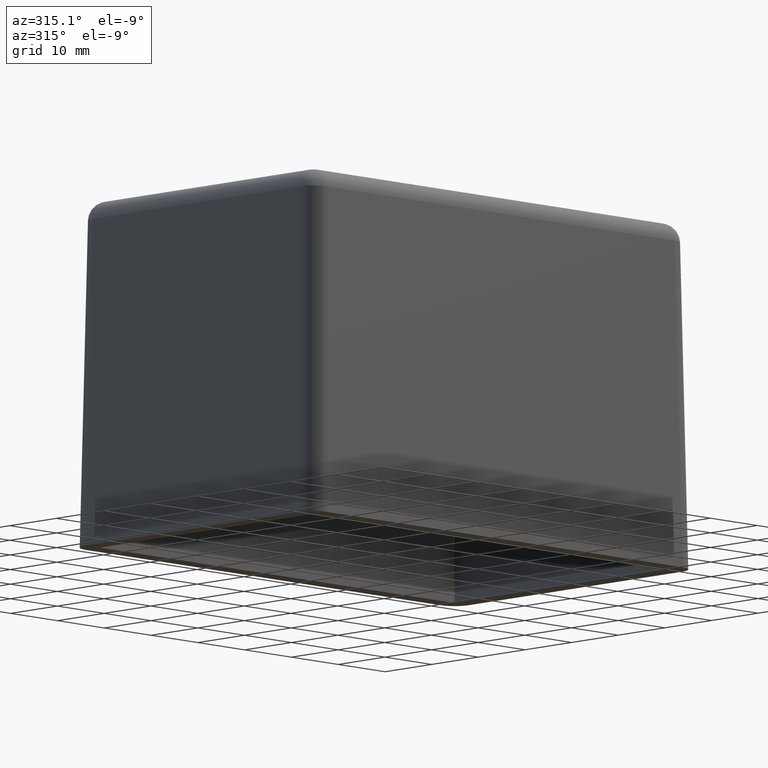
[diagram: clean part render]
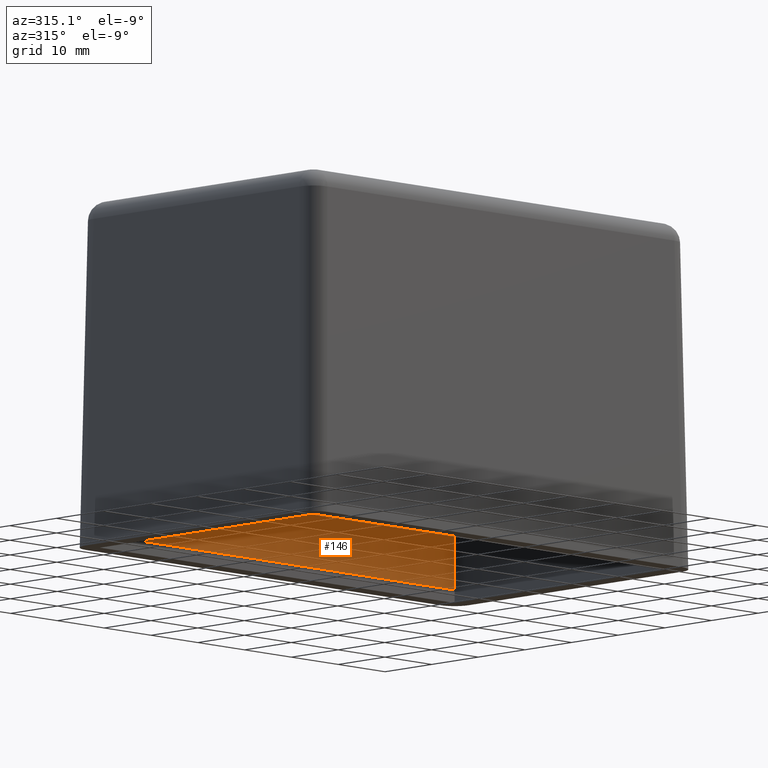
[diagram: same view with one face highlighted and labeled with its STEP entity id]
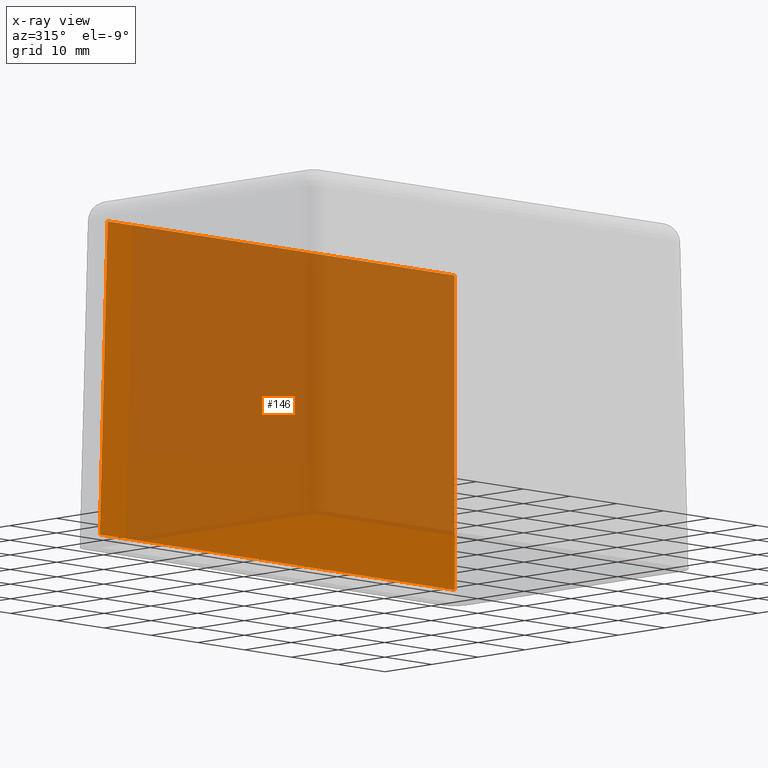
[diagram: x-ray of the same camera — body ghosted, the highlighted face saturated]
A machine part, auxiliary view. The second image highlights one B-rep face of the part: STEP entity #146.
The next image is the same camera in x-ray: the body ghosted, the highlighted face saturated — about 82% of this face is hidden behind the body in this view.
In plain terms, the highlighted planar face has unit normal (0, 0.9998, 0.0175).
Its self-contained STEP definition (entity closure, byte-faithful):
#146 = ADVANCED_FACE( '', ( #360 ), #361, .F. );
#360 = FACE_OUTER_BOUND( '', #636, .T. );
#361 = PLANE( '', #637 );
#636 = EDGE_LOOP( '', ( #1386, #1387, #1388, #1389 ) );
#637 = AXIS2_PLACEMENT_3D( '', #1390, #1391, #1392 );
#1386 = ORIENTED_EDGE( '', *, *, #2084, .F. );
#1387 = ORIENTED_EDGE( '', *, *, #2081, .T. );
#1388 = ORIENTED_EDGE( '', *, *, #2085, .T. );
#1389 = ORIENTED_EDGE( '', *, *, #2072, .F. );
#1390 = CARTESIAN_POINT( '', ( -37.5000000000000, 22.5000000000000, 25.0000000000000 ) );
#1391 = DIRECTION( '', ( 0.000000000000000, 0.999847695156391, 0.0174524064372835 ) );
#1392 = DIRECTION( '', ( 0.000000000000000, -0.0174524064372835, 0.999847695156391 ) );
#2072 = EDGE_CURVE( '', #2558, #2565, #2566, .F. );
#2081 = EDGE_CURVE( '', #2580, #2577, #2581, .F. );
#2084 = EDGE_CURVE( '', #2580, #2558, #2585, .T. );
#2085 = EDGE_CURVE( '', #2577, #2565, #2586, .T. );
#2558 = VERTEX_POINT( '', #3486 );
#2565 = VERTEX_POINT( '', #3497 );
#2566 = LINE( '', #3498, #3499 );
#2577 = VERTEX_POINT( '', #3517 );
#2580 = VERTEX_POINT( '', #3521 );
#2581 = LINE( '', #3522, #3523 );
#2585 = LINE( '', #3529, #3530 );
#2586 = LINE( '', #3531, #3532 );
#3486 = CARTESIAN_POINT( '', ( 37.9014664933490, 22.9014664933490, 1.99999999999999 ) );
#3497 = CARTESIAN_POINT( '', ( -37.9014664933490, 22.9014664933490, 1.99999999999999 ) );
#3498 = CARTESIAN_POINT( '', ( -37.5000000000000, 22.9014664933490, 1.99999999999999 ) );
#3499 = VECTOR( '', #3899, 1000.00000000000 );
#3517 = CARTESIAN_POINT( '', ( -37.0636233767946, 22.0636233767946, 50.0000000000000 ) );
#3521 = CARTESIAN_POINT( '', ( 37.0636233767946, 22.0636233767946, 50.0000000000000 ) );
#3522 = CARTESIAN_POINT( '', ( -37.5000000000000, 22.0636233767946, 50.0000000000000 ) );
#3523 = VECTOR( '', #3908, 1000.00000000000 );
#3529 = CARTESIAN_POINT( '', ( 37.4771629690672, 22.4771629690672, 26.3083326259009 ) );
#3530 = VECTOR( '', #3911, 1000.00000000000 );
#3531 = CARTESIAN_POINT( '', ( -37.4862977814403, 22.4862977814403, 25.7849995755405 ) );
#3532 = VECTOR( '', #3912, 1000.00000000000 );
#3899 = DIRECTION( '', ( 1.00000000000000, 0.000000000000000, 0.000000000000000 ) );
#3908 = DIRECTION( '', ( 1.00000000000000, 0.000000000000000, 0.000000000000000 ) );
#3911 = DIRECTION( '', ( 0.0174497491606827, 0.0174497491606827, -0.999695459881887 ) );
#3912 = DIRECTION( '', ( -0.0174497491606827, 0.0174497491606827, -0.999695459881887 ) );